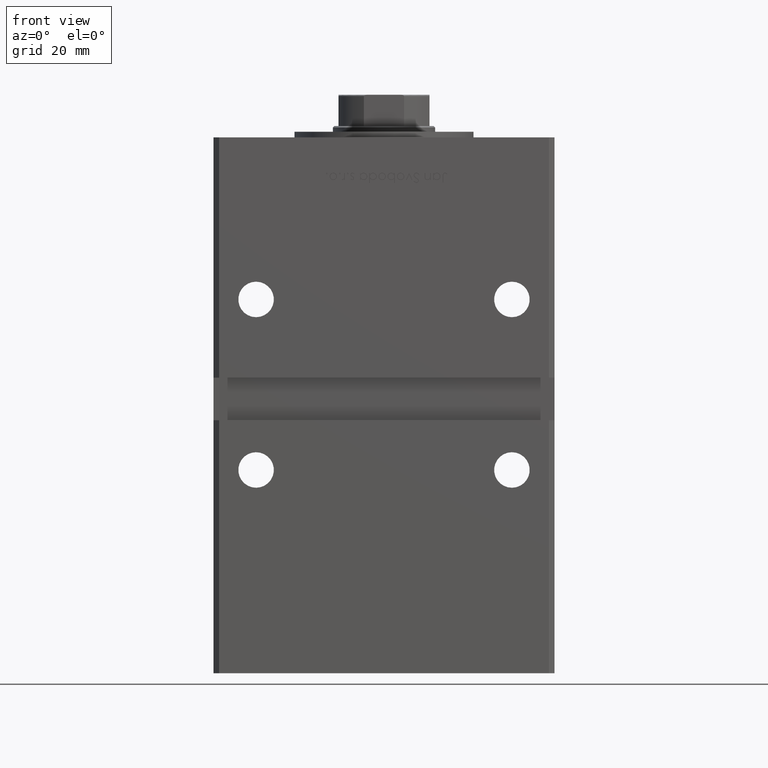
[diagram: clean part render]
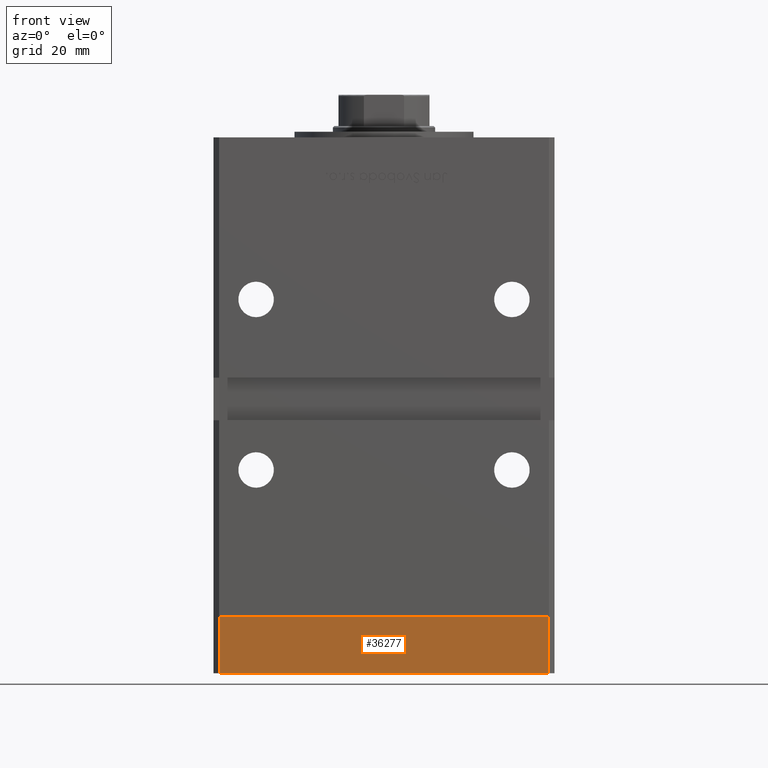
[diagram: same view with one face highlighted and labeled with its STEP entity id]
A machine part, front view. The second image highlights one B-rep face of the part: STEP entity #36277.
In plain terms, the highlighted planar face has unit normal (0, -1, -0).
Its self-contained STEP definition (entity closure, byte-faithful):
#905 = CARTESIAN_POINT ( 'NONE',  ( -57.99999999999997868, -51.00000000000001421, -20.00000000000000000 ) ) ;
#957 = CARTESIAN_POINT ( 'NONE',  ( -57.99999999999997868, -51.00000000000001421, -20.00000000000000000 ) ) ;
#2044 = CARTESIAN_POINT ( 'NONE',  ( -57.99999999999997868, -51.00000000000001421, 0.000000000000000000 ) ) ;
#2096 = VERTEX_POINT ( 'NONE', #44542 ) ;
#3358 = VERTEX_POINT ( 'NONE', #957 ) ;
#4215 = EDGE_CURVE ( 'NONE', #3358, #9373, #35903, .T. ) ;
#5171 = EDGE_CURVE ( 'NONE', #9373, #15581, #22716, .T. ) ;
#5191 = DIRECTION ( 'NONE',  ( 1.000000000000000000, 1.196361017915039486E-16, 0.000000000000000000 ) ) ;
#5946 = DIRECTION ( 'NONE',  ( 1.196361017915039486E-16, -1.000000000000000000, 0.000000000000000000 ) ) ;
#7135 = DIRECTION ( 'NONE',  ( 1.000000000000000000, 1.196361017915039486E-16, 0.000000000000000000 ) ) ;
#7693 = DIRECTION ( 'NONE',  ( 0.000000000000000000, 0.000000000000000000, 1.000000000000000000 ) ) ;
#8141 = VECTOR ( 'NONE', #5191, 1000.000000000000000 ) ;
#9154 = CARTESIAN_POINT ( 'NONE',  ( -57.99999999999997868, -51.00000000000001421, 0.000000000000000000 ) ) ;
#9373 = VERTEX_POINT ( 'NONE', #9154 ) ;
#9865 = EDGE_CURVE ( 'NONE', #2096, #15581, #15239, .T. ) ;
#15239 = LINE ( 'NONE', #52003, #26010 ) ;
#15510 = DIRECTION ( 'NONE',  ( 0.000000000000000000, 0.000000000000000000, 1.000000000000000000 ) ) ;
#15581 = VERTEX_POINT ( 'NONE', #47159 ) ;
#15986 = EDGE_CURVE ( 'NONE', #3358, #2096, #37407, .T. ) ;
#17351 = VECTOR ( 'NONE', #15510, 1000.000000000000000 ) ;
#18145 = ORIENTED_EDGE ( 'NONE', *, *, #15986, .T. ) ;
#19298 = DIRECTION ( 'NONE',  ( 1.000000000000000000, 1.196361017915039486E-16, 0.000000000000000000 ) ) ;
#22716 = LINE ( 'NONE', #2044, #37118 ) ;
#26010 = VECTOR ( 'NONE', #7693, 1000.000000000000000 ) ;
#26277 = ORIENTED_EDGE ( 'NONE', *, *, #5171, .F. ) ;
#27529 = ORIENTED_EDGE ( 'NONE', *, *, #9865, .T. ) ;
#35903 = LINE ( 'NONE', #52287, #17351 ) ;
#35917 = CARTESIAN_POINT ( 'NONE',  ( -57.99999999999997868, -51.00000000000001421, -20.00000000000000000 ) ) ;
#36277 = ADVANCED_FACE ( 'NONE', ( #48260 ), #52300, .T. ) ;
#37118 = VECTOR ( 'NONE', #7135, 1000.000000000000000 ) ;
#37407 = LINE ( 'NONE', #905, #8141 ) ;
#39627 = EDGE_LOOP ( 'NONE', ( #26277, #45628, #18145, #27529 ) ) ;
#44542 = CARTESIAN_POINT ( 'NONE',  ( 58.00000000000000000, -51.00000000000000711, -20.00000000000000000 ) ) ;
#45628 = ORIENTED_EDGE ( 'NONE', *, *, #4215, .F. ) ;
#46551 = AXIS2_PLACEMENT_3D ( 'NONE', #35917, #5946, #19298 ) ;
#47159 = CARTESIAN_POINT ( 'NONE',  ( 58.00000000000000000, -51.00000000000000711, 0.000000000000000000 ) ) ;
#48260 = FACE_OUTER_BOUND ( 'NONE', #39627, .T. ) ;
#52003 = CARTESIAN_POINT ( 'NONE',  ( 58.00000000000000000, -51.00000000000000711, -20.00000000000000000 ) ) ;
#52287 = CARTESIAN_POINT ( 'NONE',  ( -57.99999999999997868, -51.00000000000001421, -20.00000000000000000 ) ) ;
#52300 = PLANE ( 'NONE',  #46551 ) ;